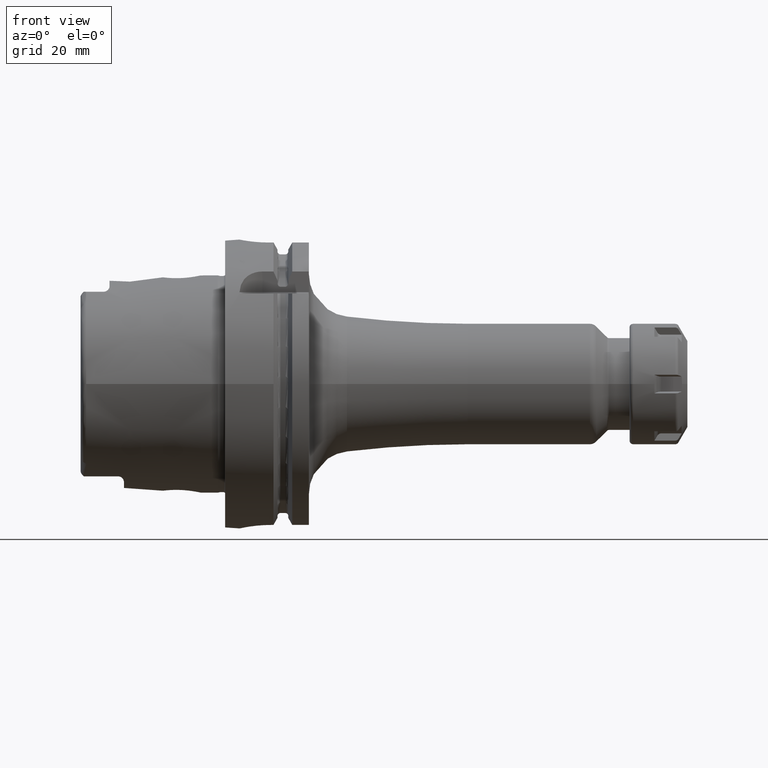
[diagram: clean part render]
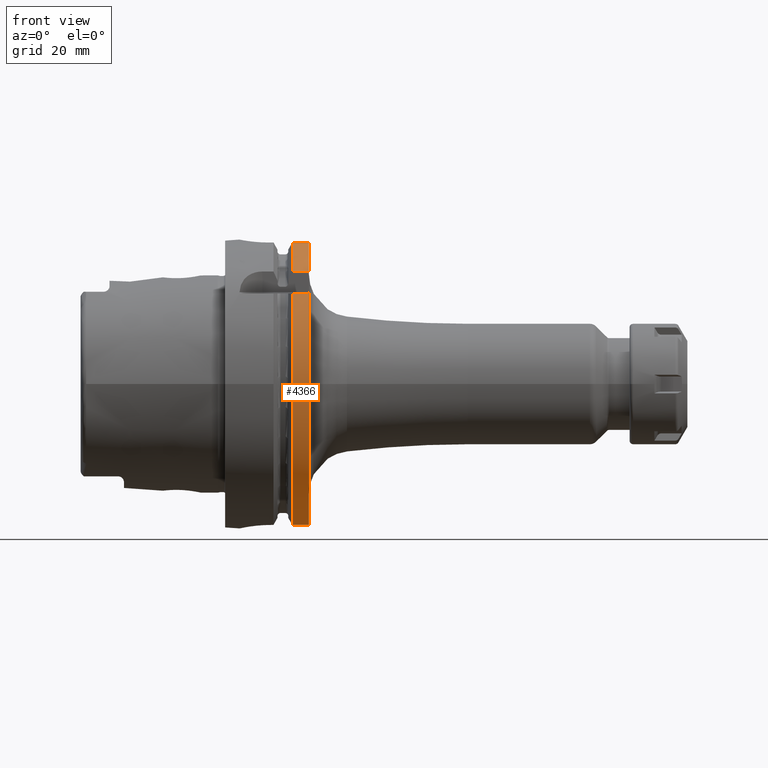
[diagram: same view with one face highlighted and labeled with its STEP entity id]
A machine part, front view. The second image highlights one B-rep face of the part: STEP entity #4366.
In plain terms, the highlighted cylindrical surface (partial cylindrical patch) has radius 50 mm, axis along (1, 0, 0).
Its self-contained STEP definition (entity closure, byte-faithful):
#1056=CARTESIAN_POINT('',(2.895E1,-3.862560679135E1,3.175E1));
#1057=CARTESIAN_POINT('',(2.881701632286E1,-3.873491851743E1,3.161701632286E1));
#1058=CARTESIAN_POINT('',(2.868368188935E1,-3.884336780215E1,3.148368188935E1));
#1059=CARTESIAN_POINT('',(2.855E1,-3.895096276089E1,3.135E1));
#1070=DIRECTION('',(1.E0,0.E0,0.E0));
#1071=VECTOR('',#1070,5.302404735808E0);
#1072=CARTESIAN_POINT('',(2.324759526419E1,-3.895096276089E1,3.135E1));
#1073=LINE('',#1072,#1071);
#1074=CARTESIAN_POINT('',(2.895E1,0.E0,0.E0));
#1075=DIRECTION('',(1.E0,0.E0,0.E0));
#1076=DIRECTION('',(0.E0,-6.27E-1,7.790192552177E-1));
#1077=AXIS2_PLACEMENT_3D('',#1074,#1075,#1076);
#1079=DIRECTION('',(1.E0,0.E0,0.E0));
#1080=VECTOR('',#1079,5.702404735808E0);
#1081=CARTESIAN_POINT('',(2.324759526419E1,-3.135E1,3.895096276089E1));
#1082=LINE('',#1081,#1080);
#1083=CARTESIAN_POINT('',(2.9E1,0.E0,0.E0));
#1084=DIRECTION('',(1.E0,0.E0,0.E0));
#1085=DIRECTION('',(0.E0,-2.0042E-1,9.797100711945E-1));
#1086=AXIS2_PLACEMENT_3D('',#1083,#1084,#1085);
#1261=DIRECTION('',(1.E0,0.E0,0.E0));
#1262=VECTOR('',#1261,5.752404735808E0);
#1263=CARTESIAN_POINT('',(2.324759526419E1,-1.1021E1,-4.877025280845E1));
#1264=LINE('',#1263,#1262);
#1656=CARTESIAN_POINT('',(2.324759526419E1,-3.895096276089E1,3.135E1));
#1658=CARTESIAN_POINT('',(2.324759526419E1,0.E0,0.E0));
#1659=DIRECTION('',(1.E0,0.E0,0.E0));
#1660=DIRECTION('',(0.E0,-7.790192552177E-1,6.27E-1));
#1661=AXIS2_PLACEMENT_3D('',#1658,#1659,#1660);
#1668=CARTESIAN_POINT('',(2.324759526419E1,-1.1021E1,-4.877025280845E1));
#1687=CARTESIAN_POINT('',(2.324759526419E1,-1.0021E1,4.898550355973E1));
#1694=CARTESIAN_POINT('',(2.324759526419E1,0.E0,0.E0));
#1695=DIRECTION('',(1.E0,0.E0,0.E0));
#1696=DIRECTION('',(0.E0,-2.0042E-1,9.797100711945E-1));
#1697=AXIS2_PLACEMENT_3D('',#1694,#1695,#1696);
#1736=DIRECTION('',(-1.E0,0.E0,0.E0));
#1737=VECTOR('',#1736,5.752404735808E0);
#1738=CARTESIAN_POINT('',(2.9E1,-1.0021E1,4.898550355973E1));
#1739=LINE('',#1738,#1737);
#3074=VERTEX_POINT('',#1687);
#3113=VERTEX_POINT('',#1668);
#3122=VERTEX_POINT('',#1056);
#3123=VERTEX_POINT('',#1059);
#3130=CARTESIAN_POINT('',(2.9E1,-1.0021E1,4.898550355973E1));
#3131=CARTESIAN_POINT('',(2.9E1,-1.1021E1,-4.877025280845E1));
#3132=VERTEX_POINT('',#3130);
#3133=VERTEX_POINT('',#3131);
#3142=CARTESIAN_POINT('',(2.324759526419E1,-3.135E1,3.895096276089E1));
#3143=CARTESIAN_POINT('',(2.895E1,-3.135E1,3.895096276089E1));
#3144=VERTEX_POINT('',#3142);
#3145=VERTEX_POINT('',#3143);
#3166=VERTEX_POINT('',#1656);
#4342=CARTESIAN_POINT('',(-5.395E1,0.E0,0.E0));
#4343=DIRECTION('',(1.E0,0.E0,0.E0));
#4344=DIRECTION('',(0.E0,-1.E0,0.E0));
#4345=AXIS2_PLACEMENT_3D('',#4342,#4343,#4344);
#4346=CYLINDRICAL_SURFACE('',#4345,5.E1);
#4348=ORIENTED_EDGE('',*,*,#4347,.T.);
#4349=ORIENTED_EDGE('',*,*,#4316,.F.);
#4351=ORIENTED_EDGE('',*,*,#4350,.F.);
#4353=ORIENTED_EDGE('',*,*,#4352,.F.);
#4355=ORIENTED_EDGE('',*,*,#4354,.F.);
#4357=ORIENTED_EDGE('',*,*,#4356,.F.);
#4359=ORIENTED_EDGE('',*,*,#4358,.T.);
#4361=ORIENTED_EDGE('',*,*,#4360,.F.);
#4363=ORIENTED_EDGE('',*,*,#4362,.F.);
#4364=EDGE_LOOP('',(#4348,#4349,#4351,#4353,#4355,#4357,#4359,#4361,#4363));
#4365=FACE_OUTER_BOUND('',#4364,.F.);
#4366=ADVANCED_FACE('',(#4365),#4346,.T.);
#1060=B_SPLINE_CURVE_WITH_KNOTS('',3,(#1056,#1057,#1058,#1059),.UNSPECIFIED.,
.F.,.F.,(4,4),(0.E0,1.E0),.UNSPECIFIED.);
#1078=CIRCLE('',#1077,5.E1);
#1087=CIRCLE('',#1086,5.E1);
#1662=CIRCLE('',#1661,5.E1);
#1698=CIRCLE('',#1697,5.E1);
#4316=EDGE_CURVE('',#3122,#3123,#1060,.T.);
#4347=EDGE_CURVE('',#3166,#3123,#1073,.T.);
#4350=EDGE_CURVE('',#3145,#3122,#1078,.T.);
#4352=EDGE_CURVE('',#3144,#3145,#1082,.T.);
#4354=EDGE_CURVE('',#3074,#3144,#1698,.T.);
#4356=EDGE_CURVE('',#3132,#3074,#1739,.T.);
#4358=EDGE_CURVE('',#3132,#3133,#1087,.T.);
#4360=EDGE_CURVE('',#3113,#3133,#1264,.T.);
#4362=EDGE_CURVE('',#3166,#3113,#1662,.T.);